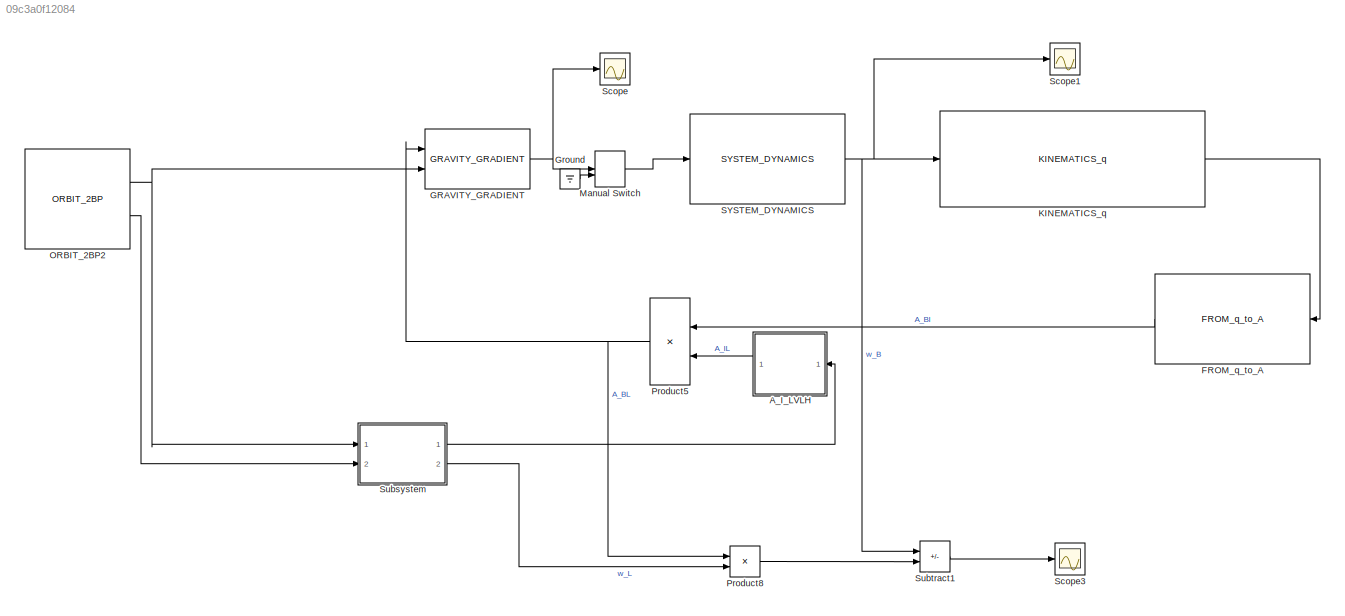
MODEL slx_09c3a0f12084
KIND model
CONFIG AbsTol = auto
CONFIG EnableMultiTasking = off
CONFIG FixedStep = 0.1
CONFIG MaxStep = auto
CONFIG MinStep = auto
CONFIG RelTol = 1e-3
CONFIG SampleTimeConstraint = Unconstrained
CONFIG SolverName = ode8
CONFIG StartTime = 0.0
CONFIG StopTime = Tsim
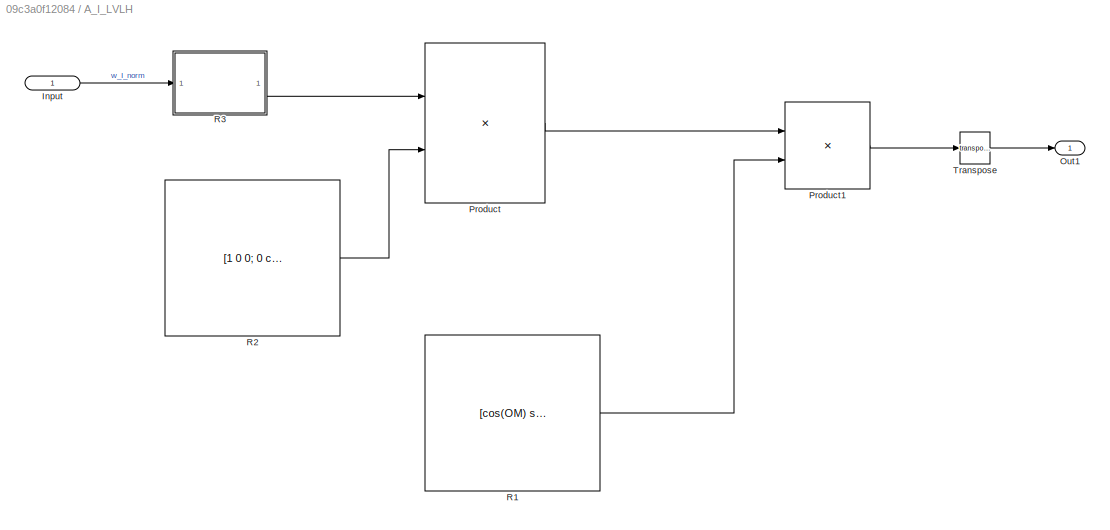
BLOCK [SubSystem] A_I_LVLH
  Ports = [1, 1]
  RequestExecContextInheritance = off
BLOCK [Inport] A_I_LVLH/Input
  IconDisplay = Signal name
BLOCK [Outport] A_I_LVLH/Out1
BLOCK [Product] A_I_LVLH/Product
  Multiplication = Matrix(*)
  Ports = [2, 1]
BLOCK [Product] A_I_LVLH/Product1
  Multiplication = Matrix(*)
  Ports = [2, 1]
BLOCK [Constant] A_I_LVLH/R1
  Value = [cos(OM)  sin(OM) 0; -sin(OM) cos(OM) 0; 0 0 1]
BLOCK [Constant] A_I_LVLH/R2
  Value = [1 0 0; 0 cos(i) sin(i); 0 -sin(i) cos(i)]
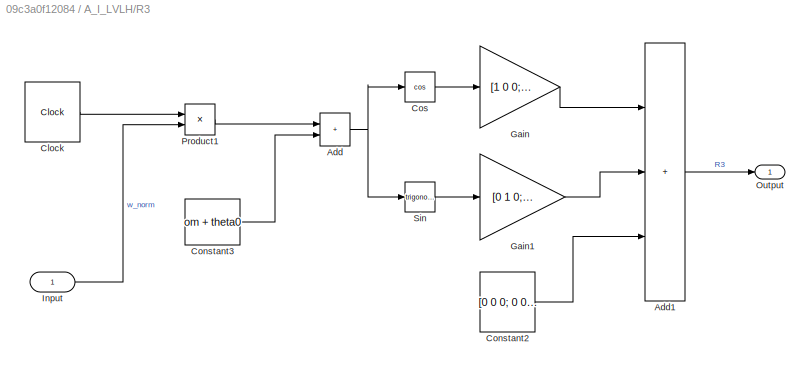
BLOCK [SubSystem] A_I_LVLH/R3
  Ports = [1, 1]
  RequestExecContextInheritance = off
BLOCK [Sum] A_I_LVLH/R3/Add
  IconShape = rectangular
  Ports = [2, 1]
BLOCK [Sum] A_I_LVLH/R3/Add1
  IconShape = rectangular
  Inputs = +++
  Ports = [3, 1]
BLOCK [Clock] A_I_LVLH/R3/Clock
BLOCK [Constant] A_I_LVLH/R3/Constant2
  Value = [0 0 0; 0 0 0; 0 0 1]
BLOCK [Constant] A_I_LVLH/R3/Constant3
  Value = om + theta0
BLOCK [Trigonometry] A_I_LVLH/R3/Cos
  Operator = cos
  Ports = [1, 1]
BLOCK [Gain] A_I_LVLH/R3/Gain
  Gain = [1 0 0; 0 1 0; 0 0 0]
BLOCK [Gain] A_I_LVLH/R3/Gain1
  Gain = [0 1 0; -1 0 0; 0 0 0]
BLOCK [Inport] A_I_LVLH/R3/Input
  IconDisplay = Signal name
BLOCK [Outport] A_I_LVLH/R3/Output
  IconDisplay = Signal name
BLOCK [Product] A_I_LVLH/R3/Product1
  Ports = [2, 1]
BLOCK [Trigonometry] A_I_LVLH/R3/Sin
  Ports = [1, 1]
BLOCK [Math] A_I_LVLH/Transpose
  Operator = transpose
  Ports = [1, 1]
BLOCK [Reference] FROM_q_to_A  REF=kinematic_transform/FROM_q_to_A  (lib defined in slx_aea597a4063a)
  Ports = [1, 1]
  SourceBlock = kinematic_transform/FROM_q_to_A
  SourceProductName = Kinematic Transformation
  SourceType = SubSystem
BLOCK [Reference] GRAVITY_GRADIENT  REF=environment/GRAVITY_GRADIENT  (lib defined in slx_0e64a065ad8c, slx_1a373574b8ee, +3 more)
  Ports = [2, 1]
  SourceBlock = environment/GRAVITY_GRADIENT
  SourceProductName = Environment
  SourceType = SubSystem
BLOCK [Ground] Ground
BLOCK [Reference] KINEMATICS_q  REF=kinematics/KINEMATICS_q  (lib defined in mdl_2d95649a4485, slx_49f32b38500f, +2 more)
  Ports = [1, 1]
  SourceBlock = kinematics/KINEMATICS_q
  SourceProductName = Kinematics
  SourceType = SubSystem
BLOCK [ManualSwitch] Manual Switch
BLOCK [Reference] ORBIT_2BP2  REF=orbit/ORBIT_2BP  (lib defined in slx_0abda17b96cb, slx_6e64ef6db262, +1 more)
  Ports = [0, 2]
  SourceBlock = orbit/ORBIT_2BP
  SourceProductName = Orbit
  SourceType = SubSystem
BLOCK [Product] Product5
  Multiplication = Matrix(*)
  Ports = [2, 1]
BLOCK [Product] Product8
  Multiplication = Matrix(*)
  Ports = [2, 1]
BLOCK [Reference] SYSTEM_DYNAMICS  REF=dynamics/SYSTEM_DYNAMICS  (lib defined in slx_06758dd8f563, slx_0a41d2eeeb32, +20 more)
  Ports = [1, 1]
  SourceBlock = dynamics/SYSTEM_DYNAMICS
  SourceProductName = Dynamics
  SourceType = SubSystem
BLOCK [Scope] Scope
  Floating = off
  NumInputPorts = 1
  Ports = [1]
  ScopeSpecificationString = Simulink.scopes.TimeScopeBlockCfg('CurrentConfiguration', extmgr.ConfigurationSet(extmgr.Configuration('Core','General UI',true),extmgr.Configuration('Core','Source UI',true),extmgr.Configuration('Sources','WiredSimulink',true,'DataLoggingVariableName','ScopeData1'),extmgr.Configuration('Visuals','Time Domain',true,'SerializedDisplays',{struct('MinYLimReal','-0.00000000012','MaxYLimReal','0.000000...<+1494ch>
BLOCK [Scope] Scope1
  Floating = off
  NumInputPorts = 1
  Ports = [1]
  ScopeSpecificationString = Simulink.scopes.TimeScopeBlockCfg('CurrentConfiguration', extmgr.ConfigurationSet(extmgr.Configuration('Core','General UI',true),extmgr.Configuration('Core','Source UI',true),extmgr.Configuration('Sources','WiredSimulink',true,'DataLoggingVariableName','ScopeData2'),extmgr.Configuration('Visuals','Time Domain',true,'SerializedDisplays',{struct('MinYLimReal','-0.00014','MaxYLimReal','0.00127','YLab...<+1409ch>
BLOCK [Scope] Scope3
  Floating = off
  NumInputPorts = 1
  Ports = [1]
  ScopeSpecificationString = Simulink.scopes.TimeScopeBlockCfg('CurrentConfiguration', extmgr.ConfigurationSet(extmgr.Configuration('Core','General UI',true),extmgr.Configuration('Core','Source UI',true),extmgr.Configuration('Sources','WiredSimulink',true,'DataLoggingVariableName','ScopeData6'),extmgr.Configuration('Visuals','Time Domain',true,'SerializedDisplays',{struct('MinYLimReal','-0.0000014','MaxYLimReal','0.0000014','...<+1441ch>
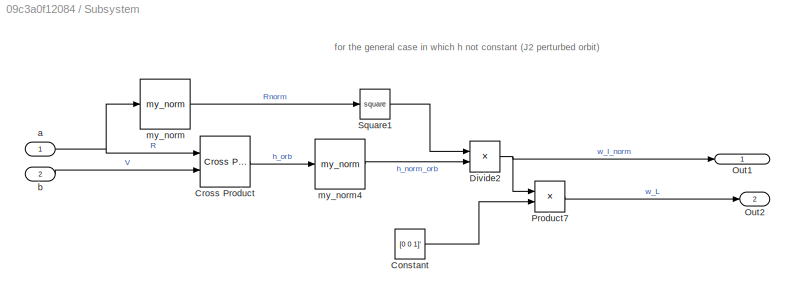
BLOCK [SubSystem] Subsystem
  Ports = [2, 2]
  RequestExecContextInheritance = off
BLOCK [Constant] Subsystem/Constant
  Value = [0 0 1]'
BLOCK [Reference] Subsystem/Cross Product  REF=matrix_library/Cross Product
  Ports = [2, 1]
  SourceBlock = matrix_library/Cross Product
  SourceProductBaseCode = SL
  SourceType = CrossProduct
BLOCK [Product] Subsystem/Divide2
  Inputs = /*
  Ports = [2, 1]
BLOCK [Outport] Subsystem/Out1
  IconDisplay = Signal name
BLOCK [Outport] Subsystem/Out2
  IconDisplay = Signal name
  Port = 2
BLOCK [Product] Subsystem/Product7
  Ports = [2, 1]
BLOCK [Math] Subsystem/Square1
  Operator = square
  Ports = [1, 1]
BLOCK [Inport] Subsystem/a
  IconDisplay = Signal name
BLOCK [Inport] Subsystem/b
  IconDisplay = Signal name
  Port = 2
BLOCK [Reference] Subsystem/my_norm  REF=my_math_ops/my_norm  (lib defined in slx_67cfba16120e)
  Ports = [1, 1]
  SourceBlock = my_math_ops/my_norm
  SourceProductName = My Mathematics Operations
  SourceType = SubSystem
BLOCK [Reference] Subsystem/my_norm4  REF=my_math_ops/my_norm  (lib defined in slx_67cfba16120e)
  Ports = [1, 1]
  SourceBlock = my_math_ops/my_norm
  SourceProductName = My Mathematics Operations
  SourceType = SubSystem
BLOCK [Sum] Subtract1
  IconShape = rectangular
  Inputs = +-
  Ports = [2, 1]
ANNOTATION Subsystem: for the general case in which h not constant (J2 perturbed orbit)
LINE A_I_LVLH/Input:1 -> A_I_LVLH/R3:1
LINE A_I_LVLH/Product1:1 -> A_I_LVLH/Transpose:1
LINE A_I_LVLH/Product:1 -> A_I_LVLH/Product1:1
LINE A_I_LVLH/R1:1 -> A_I_LVLH/Product1:2
LINE A_I_LVLH/R2:1 -> A_I_LVLH/Product:2
LINE A_I_LVLH/R3/Add1:1 -> A_I_LVLH/R3/Output:1
NET A_I_LVLH/R3/Add:1 -> A_I_LVLH/R3/Cos:1, A_I_LVLH/R3/Sin:1
LINE A_I_LVLH/R3/Clock:1 -> A_I_LVLH/R3/Product1:1
LINE A_I_LVLH/R3/Constant2:1 -> A_I_LVLH/R3/Add1:3
LINE A_I_LVLH/R3/Constant3:1 -> A_I_LVLH/R3/Add:2
LINE A_I_LVLH/R3/Cos:1 -> A_I_LVLH/R3/Gain:1
LINE A_I_LVLH/R3/Gain1:1 -> A_I_LVLH/R3/Add1:2
LINE A_I_LVLH/R3/Gain:1 -> A_I_LVLH/R3/Add1:1
LINE A_I_LVLH/R3/Input:1 -> A_I_LVLH/R3/Product1:2
LINE A_I_LVLH/R3/Product1:1 -> A_I_LVLH/R3/Add:1
LINE A_I_LVLH/R3/Sin:1 -> A_I_LVLH/R3/Gain1:1
LINE A_I_LVLH/R3:1 -> A_I_LVLH/Product:1
LINE A_I_LVLH/Transpose:1 -> A_I_LVLH/Out1:1
LINE A_I_LVLH:1 -> Product5:2
LINE FROM_q_to_A:1 -> Product5:1
NET GRAVITY_GRADIENT:1 -> Manual Switch:1, Scope:1
LINE Ground:1 -> Manual Switch:2
LINE KINEMATICS_q:1 -> FROM_q_to_A:1
LINE Manual Switch:1 -> SYSTEM_DYNAMICS:1
NET ORBIT_2BP2:1 -> GRAVITY_GRADIENT:2, Subsystem:1
LINE ORBIT_2BP2:2 -> Subsystem:2
NET Product5:1 -> GRAVITY_GRADIENT:1, Product8:1
LINE Product8:1 -> Subtract1:2
NET SYSTEM_DYNAMICS:1 -> KINEMATICS_q:1, Scope1:1, Subtract1:1
LINE Subsystem/Constant:1 -> Subsystem/Product7:2
LINE Subsystem/Cross Product:1 -> Subsystem/my_norm4:1
NET Subsystem/Divide2:1 -> Subsystem/Out1:1, Subsystem/Product7:1
LINE Subsystem/Product7:1 -> Subsystem/Out2:1
LINE Subsystem/Square1:1 -> Subsystem/Divide2:1
NET Subsystem/a:1 -> Subsystem/Cross Product:1, Subsystem/my_norm:1
LINE Subsystem/b:1 -> Subsystem/Cross Product:2
LINE Subsystem/my_norm4:1 -> Subsystem/Divide2:2
LINE Subsystem/my_norm:1 -> Subsystem/Square1:1
LINE Subsystem:1 -> A_I_LVLH:1
LINE Subsystem:2 -> Product8:2
LINE Subtract1:1 -> Scope3:1
note: NET lines group one-source signal fan-out (src -> all destinations, sorted); 1:1 wires keep LINE
